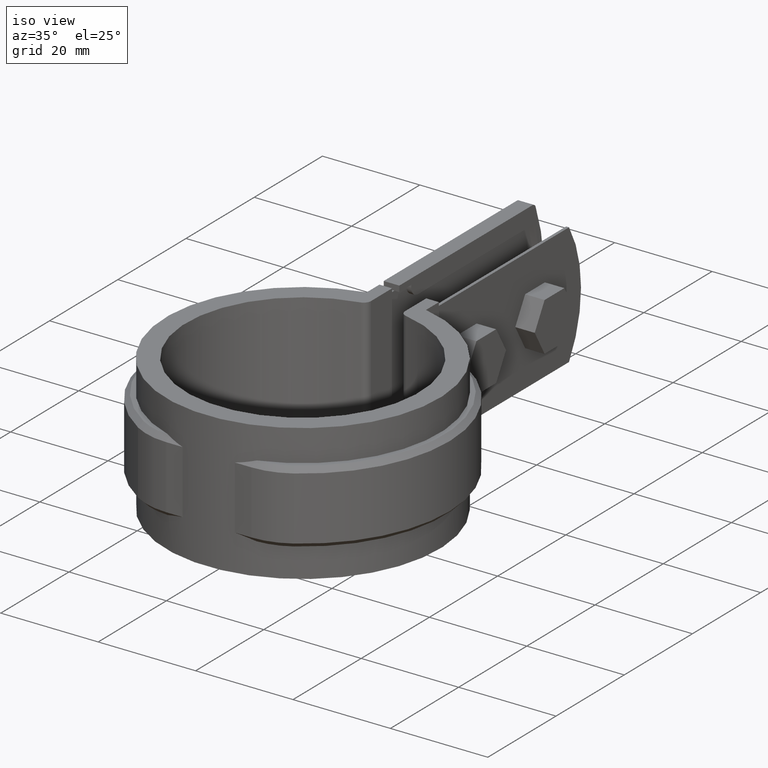
[diagram: clean part render]
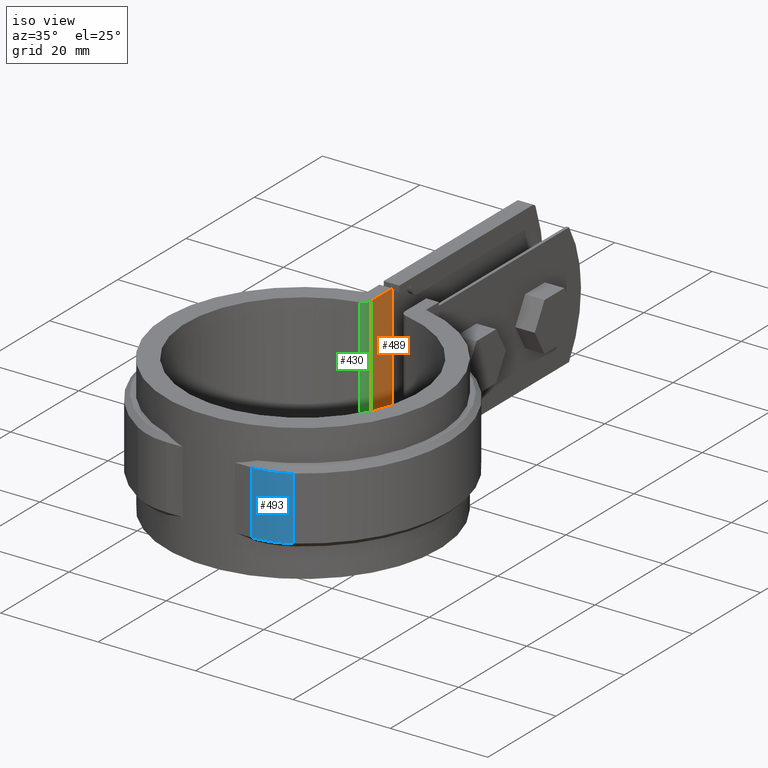
[diagram: same view with three faces highlighted in distinct colors, each labeled with its STEP entity id]
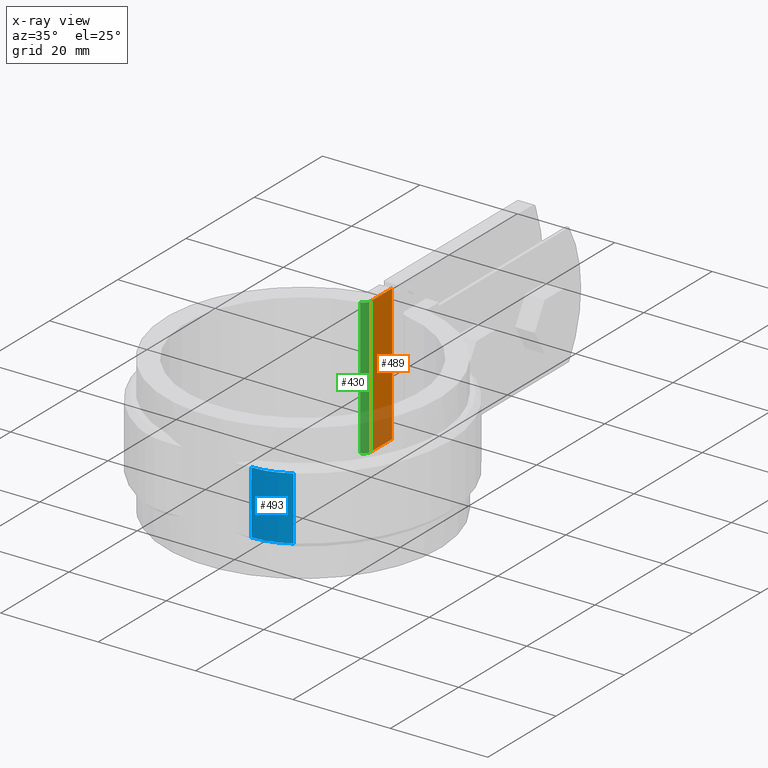
[diagram: x-ray of the same camera — body ghosted, the three highlighted faces saturated]
A machine part, iso view with three faces highlighted in distinct colors.
The next image is the same camera in x-ray (body ghosted, the three faces saturated) — at least one of them is partly hidden behind the body in this view.
Their STEP definitions:

[orange] entity #489 — the highlighted planar face has unit normal (1, -0, 0).
#489 = ADVANCED_FACE( '', ( #990 ), #991, .T. );
#990 = FACE_OUTER_BOUND( '', #2314, .T. );
#991 = PLANE( '', #2315 );
#2314 = EDGE_LOOP( '', ( #5476, #5477, #5478, #5479 ) );
#2315 = AXIS2_PLACEMENT_3D( '', #5480, #5481, #5482 );
#5476 = ORIENTED_EDGE( '', *, *, #7777, .F. );
#5477 = ORIENTED_EDGE( '', *, *, #7594, .T. );
#5478 = ORIENTED_EDGE( '', *, *, #7776, .T. );
#5479 = ORIENTED_EDGE( '', *, *, #7537, .T. );
#5480 = CARTESIAN_POINT( '', ( -3.49999999999999, 23.7383660979436, -26.5000000000000 ) );
#5481 = DIRECTION( '', ( 1.00000000000000, -6.07153216591882E-017, 0.000000000000000 ) );
#5482 = DIRECTION( '', ( 0.000000000000000, 0.000000000000000, 1.00000000000000 ) );
#7537 = EDGE_CURVE( '', #8623, #8620, #8624, .T. );
#7594 = EDGE_CURVE( '', #8725, #8729, #8731, .T. );
#7776 = EDGE_CURVE( '', #8729, #8623, #9020, .T. );
#7777 = EDGE_CURVE( '', #8725, #8620, #9021, .F. );
#8620 = VERTEX_POINT( '', #11098 );
#8623 = VERTEX_POINT( '', #11102 );
#8624 = LINE( '', #11103, #11104 );
#8725 = VERTEX_POINT( '', #11527 );
#8729 = VERTEX_POINT( '', #11532 );
#8731 = LINE( '', #11534, #11535 );
#9020 = LINE( '', #12438, #12439 );
#9021 = LINE( '', #12440, #12441 );
#11098 = CARTESIAN_POINT( '', ( -3.49999999999999, 31.1900000000000, 1.50000000000000 ) );
#11102 = CARTESIAN_POINT( '', ( -3.49999999999999, 31.1900000000000, -26.5000000000000 ) );
#11103 = CARTESIAN_POINT( '', ( -3.49999999999999, 31.1900000000000, -26.5000000000000 ) );
#11104 = VECTOR( '', #14021, 1000.00000000000 );
#11527 = CARTESIAN_POINT( '', ( -3.49999999999999, 25.0049995001000, 1.50000000000000 ) );
#11532 = CARTESIAN_POINT( '', ( -3.49999999999999, 25.0049995001000, -26.5000000000000 ) );
#11534 = CARTESIAN_POINT( '', ( -3.49999999999999, 25.0049995001000, -26.5000000000000 ) );
#11535 = VECTOR( '', #14091, 1000.00000000000 );
#12438 = CARTESIAN_POINT( '', ( -3.49999999999999, 23.7383660979436, -26.5000000000000 ) );
#12439 = VECTOR( '', #14292, 1000.00000000000 );
#12440 = CARTESIAN_POINT( '', ( -3.49999999999999, 26.7207784317748, 1.50000000000000 ) );
#12441 = VECTOR( '', #14293, 1000.00000000000 );
#14021 = DIRECTION( '', ( 0.000000000000000, 0.000000000000000, 1.00000000000000 ) );
#14091 = DIRECTION( '', ( 0.000000000000000, 0.000000000000000, -1.00000000000000 ) );
#14292 = DIRECTION( '', ( 6.07153216591882E-017, 1.00000000000000, 0.000000000000000 ) );
#14293 = DIRECTION( '', ( -6.07153216591882E-017, -1.00000000000000, 0.000000000000000 ) );

[blue] entity #493 — the highlighted cylindrical surface (partial cylindrical patch) has radius 13.6 mm, axis along (0, 0, 1).
#493 = ADVANCED_FACE( '', ( #998 ), #999, .T. );
#998 = FACE_OUTER_BOUND( '', #2322, .T. );
#999 = CYLINDRICAL_SURFACE( '', #2323, 13.6000000000000 );
#2322 = EDGE_LOOP( '', ( #5504, #5505, #5506, #5507 ) );
#2323 = AXIS2_PLACEMENT_3D( '', #5508, #5509, #5510 );
#5504 = ORIENTED_EDGE( '', *, *, #7636, .T. );
#5505 = ORIENTED_EDGE( '', *, *, #7552, .T. );
#5506 = ORIENTED_EDGE( '', *, *, #7778, .F. );
#5507 = ORIENTED_EDGE( '', *, *, #7605, .T. );
#5508 = CARTESIAN_POINT( '', ( 8.75469159936549, -13.9800000000000, -20.0000000000000 ) );
#5509 = DIRECTION( '', ( 0.000000000000000, 0.000000000000000, 1.00000000000000 ) );
#5510 = DIRECTION( '', ( 0.190592010331802, 0.981669336180815, 0.000000000000000 ) );
#7552 = EDGE_CURVE( '', #8641, #8649, #8652, .T. );
#7605 = EDGE_CURVE( '', #8750, #8745, #8751, .T. );
#7636 = EDGE_CURVE( '', #8745, #8641, #8806, .T. );
#7778 = EDGE_CURVE( '', #8750, #8649, #9022, .T. );
#8641 = VERTEX_POINT( '', #11130 );
#8649 = VERTEX_POINT( '', #11140 );
#8652 = CIRCLE( '', #11144, 13.6000000000000 );
#8745 = VERTEX_POINT( '', #11554 );
#8750 = VERTEX_POINT( '', #11560 );
#8751 = CIRCLE( '', #11561, 13.6000000000000 );
#8806 = LINE( '', #11652, #11653 );
#9022 = LINE( '', #12442, #12443 );
#11130 = CARTESIAN_POINT( '', ( 15.9728671526464, -25.5064019399818, -6.00000000000000 ) );
#11140 = CARTESIAN_POINT( '', ( 8.75469159936548, -27.5800000000000, -6.00000000000000 ) );
#11144 = AXIS2_PLACEMENT_3D( '', #14043, #14044, #14045 );
#11554 = CARTESIAN_POINT( '', ( 15.9728671526465, -25.5064019399818, -19.0000000000000 ) );
#11560 = CARTESIAN_POINT( '', ( 8.75469159936548, -27.5800000000000, -19.0000000000000 ) );
#11561 = AXIS2_PLACEMENT_3D( '', #14113, #14114, #14115 );
#11652 = CARTESIAN_POINT( '', ( 15.9728671526464, -25.5064019399818, -20.0000000000000 ) );
#11653 = VECTOR( '', #14150, 1000.00000000000 );
#12442 = CARTESIAN_POINT( '', ( 8.75469159936548, -27.5800000000000, -20.0000000000000 ) );
#12443 = VECTOR( '', #14294, 1000.00000000000 );
#14043 = CARTESIAN_POINT( '', ( 8.75469159936549, -13.9800000000000, -6.00000000000000 ) );
#14044 = DIRECTION( '', ( 0.000000000000000, 0.000000000000000, -1.00000000000000 ) );
#14045 = DIRECTION( '', ( -1.00000000000000, 0.000000000000000, 0.000000000000000 ) );
#14113 = CARTESIAN_POINT( '', ( 8.75469159936549, -13.9800000000000, -19.0000000000000 ) );
#14114 = DIRECTION( '', ( 0.000000000000000, 0.000000000000000, 1.00000000000000 ) );
#14115 = DIRECTION( '', ( 1.00000000000000, 0.000000000000000, 0.000000000000000 ) );
#14150 = DIRECTION( '', ( 0.000000000000000, 0.000000000000000, 1.00000000000000 ) );
#14294 = DIRECTION( '', ( 0.000000000000000, 0.000000000000000, 1.00000000000000 ) );

[green] entity #430 — the highlighted cylindrical surface (edge-blend (fillet) strip) has radius 1.5 mm, axis along (0, 0, 1).
#430 = ADVANCED_FACE( '', ( #871 ), #872, .T. );
#871 = FACE_OUTER_BOUND( '', #1943, .T. );
#872 = CYLINDRICAL_SURFACE( '', #1944, 1.50000000000000 );
#1943 = EDGE_LOOP( '', ( #4649, #4650, #4651, #4652 ) );
#1944 = AXIS2_PLACEMENT_3D( '', #4653, #4654, #4655 );
#4649 = ORIENTED_EDGE( '', *, *, #7591, .F. );
#4650 = ORIENTED_EDGE( '', *, *, #7592, .F. );
#4651 = ORIENTED_EDGE( '', *, *, #7593, .F. );
#4652 = ORIENTED_EDGE( '', *, *, #7594, .F. );
#4653 = CARTESIAN_POINT( '', ( -4.99999999999999, 25.0049995001000, -95.5915891932392 ) );
#4654 = DIRECTION( '', ( 0.000000000000000, 0.000000000000000, 1.00000000000000 ) );
#4655 = DIRECTION( '', ( 1.00000000000000, 0.000000000000000, 0.000000000000000 ) );
#7591 = EDGE_CURVE( '', #8724, #8725, #8726, .F. );
#7592 = EDGE_CURVE( '', #8727, #8724, #8728, .T. );
#7593 = EDGE_CURVE( '', #8729, #8727, #8730, .T. );
#7594 = EDGE_CURVE( '', #8725, #8729, #8731, .T. );
#8724 = VERTEX_POINT( '', #11526 );
#8725 = VERTEX_POINT( '', #11527 );
#8726 = CIRCLE( '', #11528, 1.50000000000000 );
#8727 = VERTEX_POINT( '', #11529 );
#8728 = LINE( '', #11530, #11531 );
#8729 = VERTEX_POINT( '', #11532 );
#8730 = CIRCLE( '', #11533, 1.50000000000000 );
#8731 = LINE( '', #11534, #11535 );
#11526 = CARTESIAN_POINT( '', ( -4.70588235294117, 23.5341171765647, 1.50000000000000 ) );
#11527 = CARTESIAN_POINT( '', ( -3.49999999999999, 25.0049995001000, 1.50000000000000 ) );
#11528 = AXIS2_PLACEMENT_3D( '', #14084, #14085, #14086 );
#11529 = CARTESIAN_POINT( '', ( -4.70588235294117, 23.5341171765647, -26.5000000000000 ) );
#11530 = CARTESIAN_POINT( '', ( -4.70588235294117, 23.5341171765647, -95.5915891932392 ) );
#11531 = VECTOR( '', #14087, 1000.00000000000 );
#11532 = CARTESIAN_POINT( '', ( -3.49999999999999, 25.0049995001000, -26.5000000000000 ) );
#11533 = AXIS2_PLACEMENT_3D( '', #14088, #14089, #14090 );
#11534 = CARTESIAN_POINT( '', ( -3.49999999999999, 25.0049995001000, -26.5000000000000 ) );
#11535 = VECTOR( '', #14091, 1000.00000000000 );
#14084 = CARTESIAN_POINT( '', ( -4.99999999999999, 25.0049995001000, 1.50000000000000 ) );
#14085 = DIRECTION( '', ( 0.000000000000000, 0.000000000000000, -1.00000000000000 ) );
#14086 = DIRECTION( '', ( -1.00000000000000, 0.000000000000000, 0.000000000000000 ) );
#14087 = DIRECTION( '', ( 0.000000000000000, 0.000000000000000, 1.00000000000000 ) );
#14088 = CARTESIAN_POINT( '', ( -4.99999999999999, 25.0049995001000, -26.5000000000000 ) );
#14089 = DIRECTION( '', ( 0.000000000000000, 0.000000000000000, -1.00000000000000 ) );
#14090 = DIRECTION( '', ( -1.00000000000000, 0.000000000000000, 0.000000000000000 ) );
#14091 = DIRECTION( '', ( 0.000000000000000, 0.000000000000000, -1.00000000000000 ) );